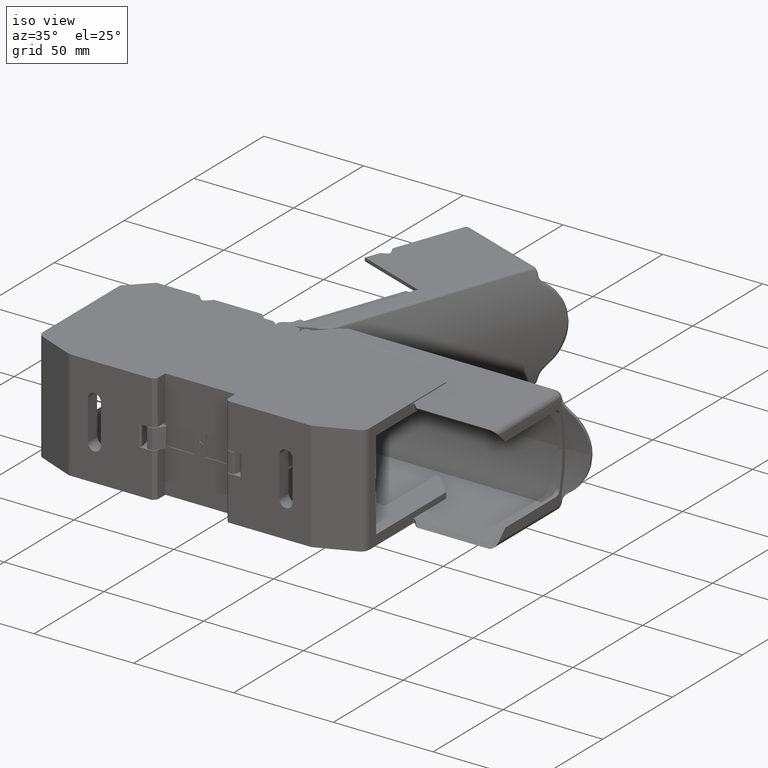
[diagram: clean part render]
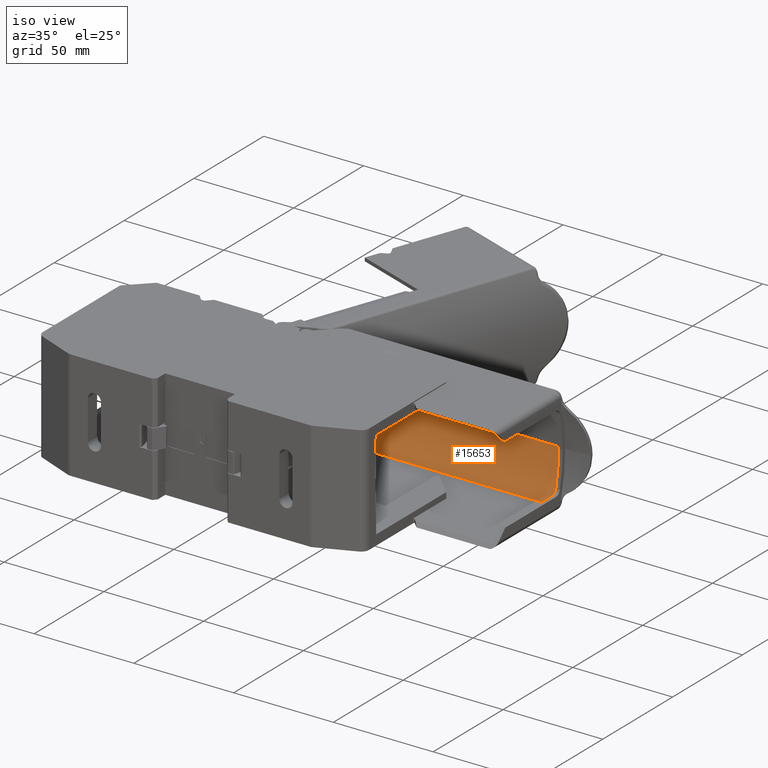
[diagram: same view with one face highlighted and labeled with its STEP entity id]
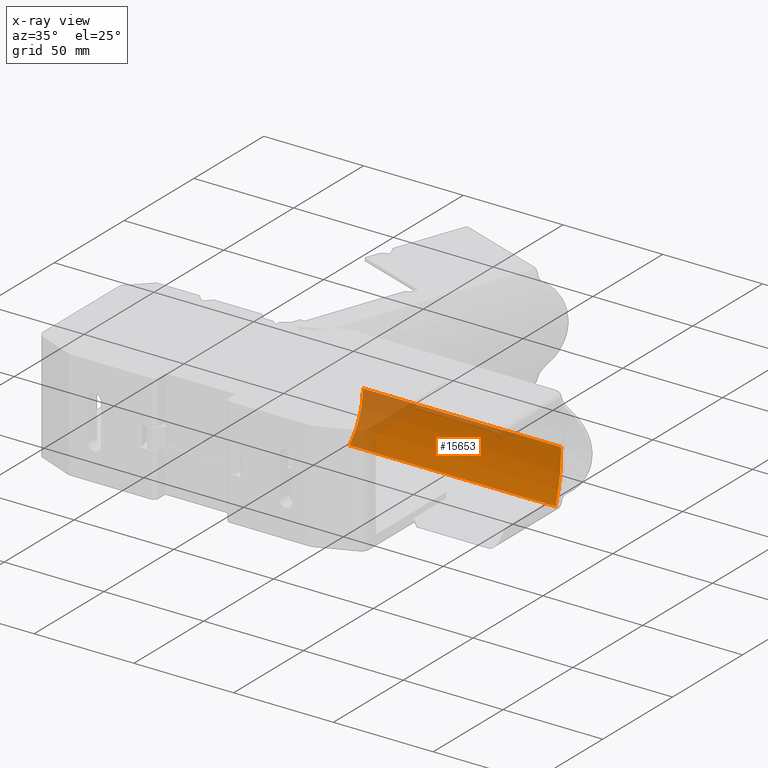
[diagram: x-ray of the same camera — body ghosted, the highlighted face saturated]
A machine part, iso view. The second image highlights one B-rep face of the part: STEP entity #15653.
The next image is the same camera in x-ray: the body ghosted, the highlighted face saturated — about 22% of this face is hidden behind the body in this view.
In plain terms, the highlighted cylindrical surface (partial cylindrical patch) has radius 82.1347 mm, axis along (1, -0, -0).
Its self-contained STEP definition (entity closure, byte-faithful):
#1594 = CARTESIAN_POINT ( 'NONE',  ( 394.3654536497608700, -183.6819571343111800, 3.999999999995880200 ) ) ;
#1600 = DIRECTION ( 'NONE',  ( 0.9999999999999994400, -3.585153857292777900E-008, -9.051553984792395800E-030 ) ) ;
#1602 = LINE ( 'NONE', #1594, #19134 ) ;
#2443 = VERTEX_POINT ( 'NONE', #39096 ) ;
#2585 = VERTEX_POINT ( 'NONE', #39279 ) ;
#3966 = VECTOR ( 'NONE', #29130, 999.9999999999998900 ) ;
#15509 = B_SPLINE_CURVE_WITH_KNOTS ( 'NONE', 3,
 ( #28985, #29069, #29027, #29007, #28987, #28989 ),
 .UNSPECIFIED., .F., .F.,
 ( 4, 2, 4 ),
 ( 0.0000000000000000000, 0.5000000000000000000, 1.000000000000000000 ),
 .UNSPECIFIED. ) ;
#15533 = B_SPLINE_CURVE_WITH_KNOTS ( 'NONE', 3,
 ( #27843, #27809, #27832, #27825, #27854, #27852, #27837, #27849, #27814, #27847, #27835, #27816 ),
 .UNSPECIFIED., .F., .F.,
 ( 4, 1, 1, 1, 1, 2, 2, 4 ),
 ( 0.0000000000000000000, 0.2500000000000055000, 0.3750000000000078800, 0.4375000000000088800, 0.4687500000000099900, 0.4843750000000103300, 0.5000000000000106600, 1.000000000000000000 ),
 .UNSPECIFIED. ) ;
#15653 = ADVANCED_FACE ( 'NONE', ( #26621 ), #26626, .F. ) ;
#18200 = ORIENTED_EDGE ( 'NONE', *, *, #33422, .T. ) ;
#18210 = ORIENTED_EDGE ( 'NONE', *, *, #33404, .F. ) ;
#18220 = ORIENTED_EDGE ( 'NONE', *, *, #34364, .F. ) ;
#18235 = ORIENTED_EDGE ( 'NONE', *, *, #33000, .F. ) ;
#19134 = VECTOR ( 'NONE', #1600, 999.9999999999998900 ) ;
#19834 = VERTEX_POINT ( 'NONE', #29327 ) ;
#19878 = VERTEX_POINT ( 'NONE', #29237 ) ;
#20513 = EDGE_LOOP ( 'NONE', ( #18220, #18235, #18200, #18210 ) ) ;
#23952 = AXIS2_PLACEMENT_3D ( 'NONE', #26631, #26624, #26625 ) ;
#26621 = FACE_OUTER_BOUND ( 'NONE', #20513, .T. ) ;
#26624 = DIRECTION ( 'NONE',  ( 0.9999999999999993300, -3.585153857292777900E-008, -9.051553984792394400E-030 ) ) ;
#26625 = DIRECTION ( 'NONE',  ( 3.585153868073980000E-008, 0.9999999999999993300, 0.0000000000000000000 ) ) ;
#26626 = CYLINDRICAL_SURFACE ( 'NONE', #23952, 82.13467308671334900 ) ;
#26631 = CARTESIAN_POINT ( 'NONE',  ( 394.3654507051064700, -265.8166302210244700, 3.999999999995880200 ) ) ;
#27809 = CARTESIAN_POINT ( 'NONE',  ( 460.0799116504794000, -187.0194632985717900, -19.27250855839859500 ) ) ;
#27814 = CARTESIAN_POINT ( 'NONE',  ( 462.3790848944284400, -184.7202893542801400, -9.018763889847171800 ) ) ;
#27816 = CARTESIAN_POINT ( 'NONE',  ( 463.4173831848485200, -183.6819725075125700, 3.999999999660173200 ) ) ;
#27825 = CARTESIAN_POINT ( 'NONE',  ( 461.7430442687756300, -185.3563301736746800, -12.56057062251248800 ) ) ;
#27832 = CARTESIAN_POINT ( 'NONE',  ( 460.9450008291965400, -186.1543738563431100, -16.19965090216170000 ) ) ;
#27835 = CARTESIAN_POINT ( 'NONE',  ( 463.4172175037688800, -183.6821564287179700, -0.3238381232719419500 ) ) ;
#27837 = CARTESIAN_POINT ( 'NONE',  ( 462.3148670160850300, -184.7845072521847100, -9.412629123866615500 ) ) ;
#27843 = CARTESIAN_POINT ( 'NONE',  ( 459.4223617037243300, -187.6763193545460000, -21.30047496714908600 ) ) ;
#27847 = CARTESIAN_POINT ( 'NONE',  ( 463.0781778376800200, -184.0211961980802800, -4.618983863844277100 ) ) ;
#27849 = CARTESIAN_POINT ( 'NONE',  ( 462.3580397620183400, -184.7413344931007700, -9.149153886702583400 ) ) ;
#27852 = CARTESIAN_POINT ( 'NONE',  ( 462.2491649183058400, -184.8502093699769700, -9.807600552466654500 ) ) ;
#27854 = CARTESIAN_POINT ( 'NONE',  ( 462.0892591713346700, -185.0101151656568600, -10.72751056251136100 ) ) ;
#28985 = CARTESIAN_POINT ( 'NONE',  ( 562.7734119772567300, -183.6819631719955900, 3.999999999995873100 ) ) ;
#28987 = CARTESIAN_POINT ( 'NONE',  ( 562.7734125286095800, -186.3524954033885300, -17.21316662001618200 ) ) ;
#28989 = CARTESIAN_POINT ( 'NONE',  ( 562.7734122231668200, -187.6756449477397000, -21.30000000001008700 ) ) ;
#29007 = CARTESIAN_POINT ( 'NONE',  ( 562.7734125643311200, -185.3561227105911900, -13.04871127524924300 ) ) ;
#29027 = CARTESIAN_POINT ( 'NONE',  ( 562.7734126123431200, -184.0169310281042100, -4.564556656169322900 ) ) ;
#29069 = CARTESIAN_POINT ( 'NONE',  ( 562.7734126243501600, -183.6820199941274700, -0.2953209257752472700 ) ) ;
#29080 = CARTESIAN_POINT ( 'NONE',  ( 459.4223617037486600, -187.6756412424455800, -21.30000000001023300 ) ) ;
#29122 = LINE ( 'NONE', #29080, #3966 ) ;
#29130 = DIRECTION ( 'NONE',  ( 0.9999999999999994400, -3.585153857292777900E-008, -9.051553984792395800E-030 ) ) ;
#29237 = CARTESIAN_POINT ( 'NONE',  ( 562.7734119772567300, -183.6819631719955900, 3.999999999995873100 ) ) ;
#29327 = CARTESIAN_POINT ( 'NONE',  ( 463.4173831848485200, -183.6819725075125700, 3.999999999660173200 ) ) ;
#33000 = EDGE_CURVE ( 'NONE', #2443, #19834, #15533, .T. ) ;
#33404 = EDGE_CURVE ( 'NONE', #19878, #2585, #15509, .T. ) ;
#33422 = EDGE_CURVE ( 'NONE', #2443, #2585, #29122, .T. ) ;
#34364 = EDGE_CURVE ( 'NONE', #19834, #19878, #1602, .T. ) ;
#39096 = CARTESIAN_POINT ( 'NONE',  ( 459.4223617037243300, -187.6763193545460000, -21.30047496714908600 ) ) ;
#39279 = CARTESIAN_POINT ( 'NONE',  ( 562.7734122231668200, -187.6756449477397000, -21.30000000001008700 ) ) ;